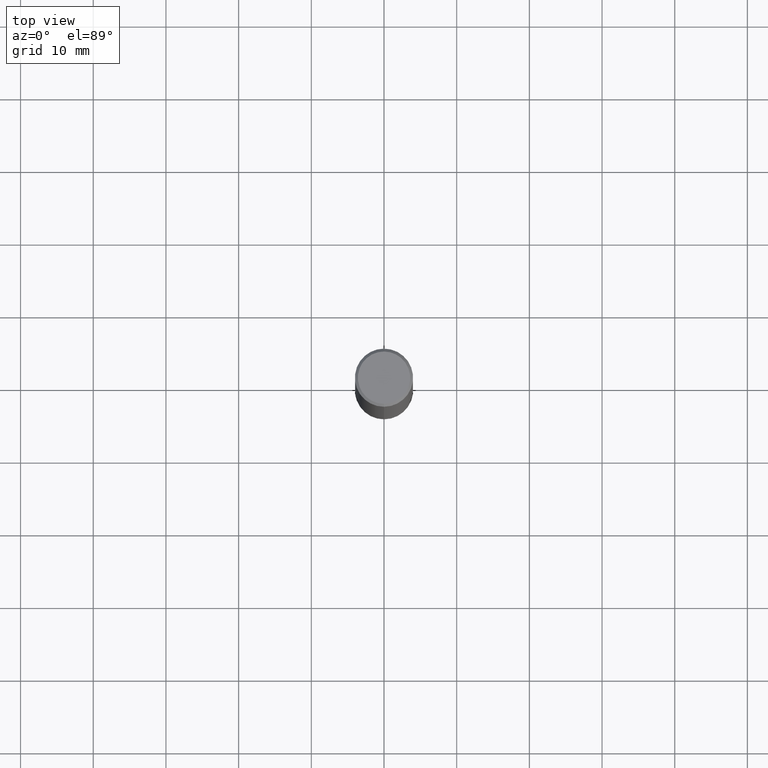
[diagram: clean part render]
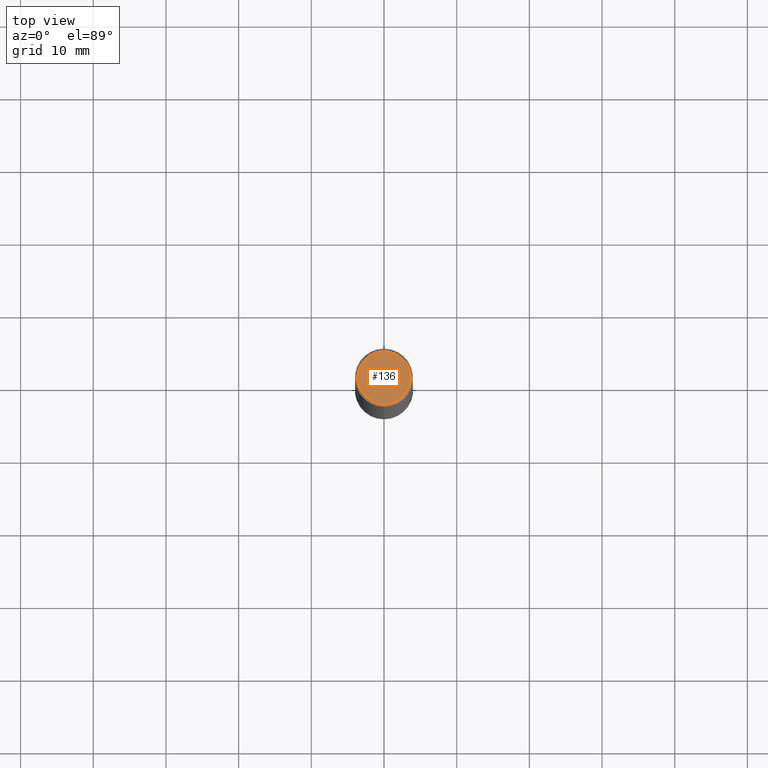
[diagram: same view with one face highlighted and labeled with its STEP entity id]
A machine part, top view. The second image highlights one B-rep face of the part: STEP entity #136.
In plain terms, the highlighted planar face has unit normal (-0, 0, 1).
Its self-contained STEP definition (entity closure, byte-faithful):
#84=VERTEX_POINT('',#191);
#98=VERTEX_POINT('',#207);
#132=EDGE_CURVE('',#84,#98,#243,.T.);
#136=ADVANCED_FACE('',(#247),#248,.T.);
#140=EDGE_CURVE('',#98,#84,#252,.T.);
#191=CARTESIAN_POINT('',(4.40858287376056E-016,-3.6,0.0));
#207=CARTESIAN_POINT('',(0.0,3.6,0.0));
#243=CIRCLE('',#369,3.6);
#247=FACE_OUTER_BOUND('',#374,.T.);
#248=PLANE('',#375);
#252=CIRCLE('',#381,3.6);
#369=AXIS2_PLACEMENT_3D('',#487,#488,#489);
#374=EDGE_LOOP('',(#494,#495));
#375=AXIS2_PLACEMENT_3D('',#496,#497,#498);
#381=AXIS2_PLACEMENT_3D('',#502,#503,#504);
#487=CARTESIAN_POINT('',(0.0,0.0,0.0));
#488=DIRECTION('',(0.0,0.0,-1.0));
#489=DIRECTION('',(0.0,1.0,0.0));
#494=ORIENTED_EDGE('',*,*,#140,.F.);
#495=ORIENTED_EDGE('',*,*,#132,.F.);
#496=CARTESIAN_POINT('',(0.0,1.8,0.0));
#497=DIRECTION('',(-0.0,0.0,1.0));
#498=DIRECTION('',(0.0,-1.0,0.0));
#502=CARTESIAN_POINT('',(0.0,0.0,0.0));
#503=DIRECTION('',(0.0,0.0,-1.0));
#504=DIRECTION('',(0.0,1.0,0.0));